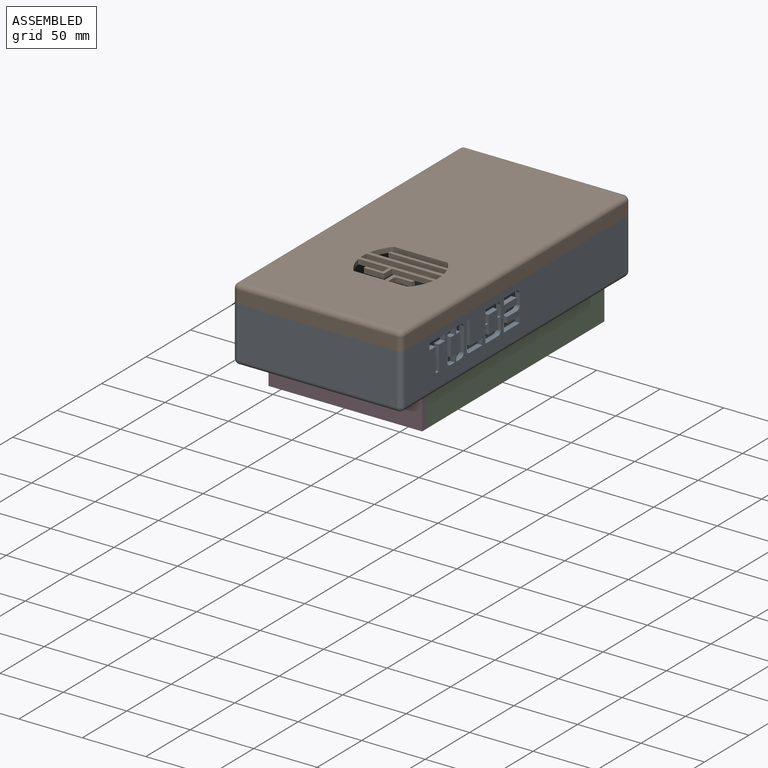
[diagram: assembled view]
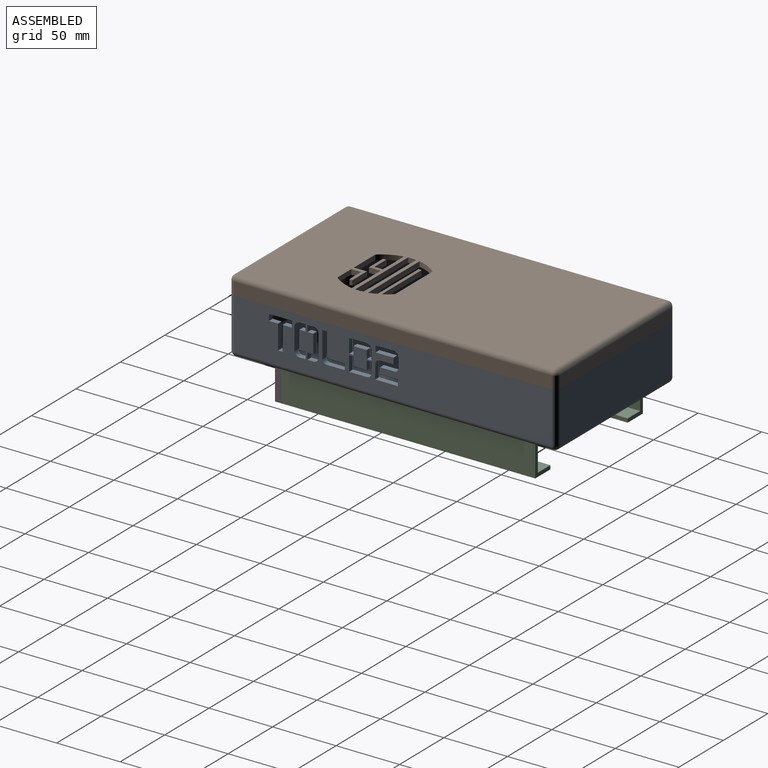
[diagram: assembled view, second angle]
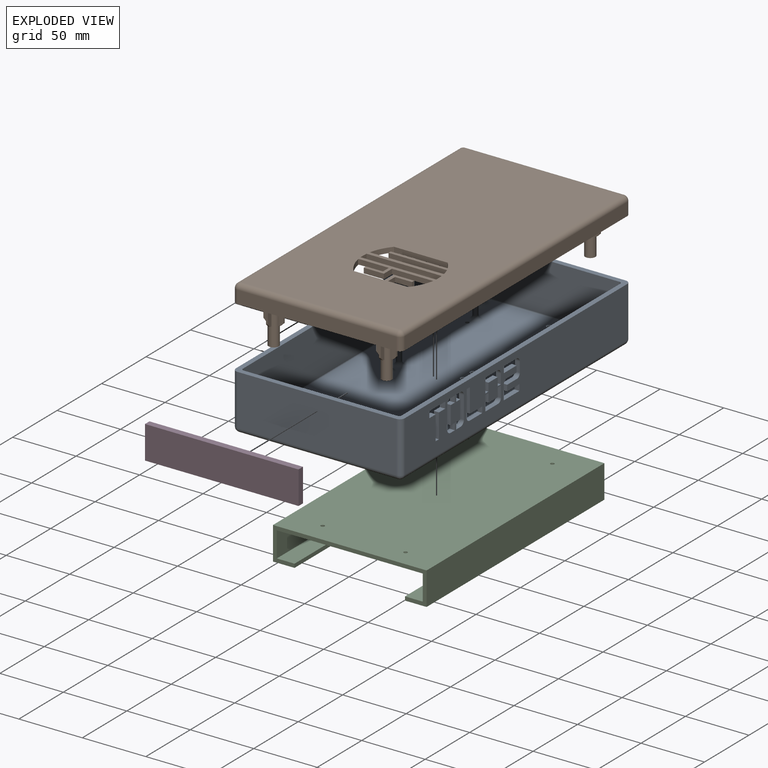
[diagram: exploded view]
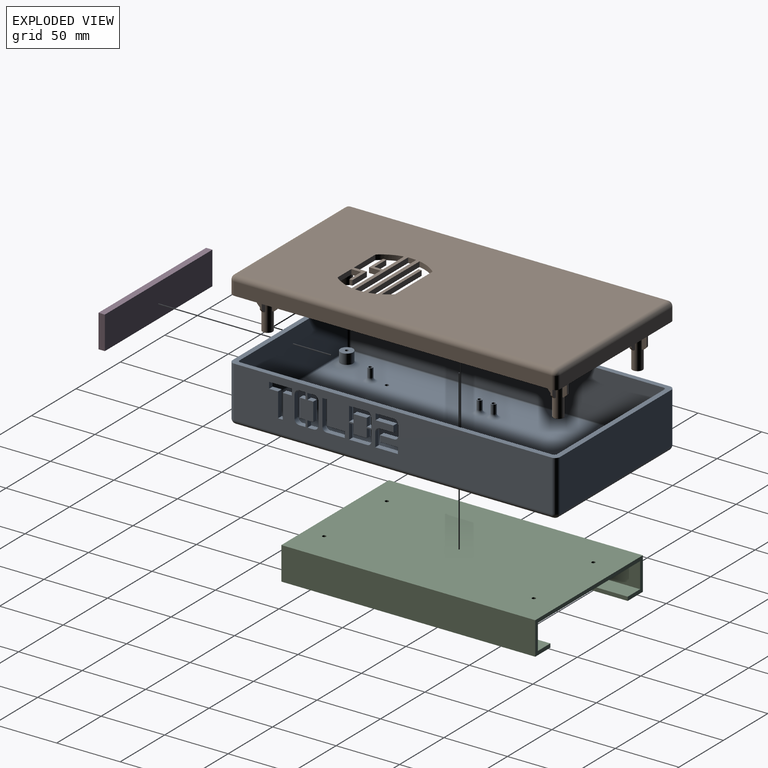
[diagram: exploded view, second angle]
FCSTD DOCUMENT  (FreeCAD 0.20R)
Label: FINALES
License: All rights reserved
objects: Sketcher::SketchObject×13, PartDesign::Pad×10, Part::Feature×10, PartDesign::Pocket×7, PartDesign::Fillet×6, PartDesign::Body×4, App::Part×4, App::Link×3, PartDesign::SubShapeBinder×3, PartDesign::Thickness×2, PartDesign::Hole×2, PartDesign::Chamfer×1, Part::Compound×1, Part::MultiFuse×1
note: 88 computed .brp shape members not serialized (recipe doc carries the construction recipe); baked Part::Feature solids carry a one-line shape summary decoded from their .brp
EXTERNAL_REF file=SOPORTE SOPORTE SOPORTE QUE ME ENREDO.FCStd obj=_75_13541_BATUU_DEV_KIT_TOP_ASS_ASM
EXTERNAL_REF file=SOPORTE SOPORTE SOPORTE QUE ME ENREDO.FCStd obj=Compound
EXTERNAL_REF file=SOPORTE SOPORTE SOPORTE QUE ME ENREDO.FCStd obj=Part__Feature600

FEATURE [Sketcher::SketchObject] Sketch
  FullyConstrained = true
  MapMode = 5
  Support = -> [XY_Plane]
  sketch-geometry (4):
    g0: LineSegment StartX=0 StartY=0 StartZ=0 EndX=125 EndY=0 EndZ=0
    g1: LineSegment StartX=125 StartY=0 StartZ=0 EndX=125 EndY=-250 EndZ=0
    g2: LineSegment StartX=125 StartY=-250 StartZ=0 EndX=0 EndY=-250 EndZ=0
    g3: LineSegment StartX=0 StartY=-250 StartZ=0 EndX=0 EndY=0 EndZ=0
  constraints (11):
    c: Coincident(g0,g1)
    c: Coincident(g1,g2)
    c: Coincident(g2,g3)
    c: Coincident(g3,g0)
    c: Horizontal(g0)
    c: Horizontal(g2)
    c: Vertical(g1)
    c: Vertical(g3)
    c: Coincident(g0,g-1)
    c: DistanceY(g1,g1) = 250
    c: DistanceX(g2,g2) = 125
FEATURE [PartDesign::Pad] Pad
  AlongSketchNormal = false
  Direction = (0,0,1)
  Length = 40
  Length2 = 100
  Profile = -> Sketch
  Type = 0
FEATURE [PartDesign::Thickness] Thickness
  Base = -> Pad [Face6]
  BaseFeature = -> Pad
  Intersection = false
  Join = 0
  Mode = 0
  SupportTransform = false
  Value = 4
FEATURE [PartDesign::Fillet] Fillet
  Base = -> Thickness [Edge1,Edge2,Edge8,Edge5]
  BaseFeature = -> Thickness
  Radius = 2
  SupportTransform = false
  UseAllEdges = false
FEATURE [App::Link] Link002  label="675_13541_BATUU_DEV_KIT_TOP_ASS_ASM"
  LinkPlacement = pos=(30,-126,8.99999) rot=(0,0,-1;1.5708rad)
  LinkedObject = -> <external SOPORTE SOPORTE SOPORTE QUE ME ENREDO.FCStd>#_75_13541_BATUU_DEV_KIT_TOP_ASS_ASM
  Placement = pos=(30,-126,8.99999) rot=(0,0,-1;1.5708rad)
FEATURE [App::Link] Link003  label="Compound001"
  LinkPlacement = pos=(67,-128,23) rot=(0,0,-1;1.5708rad)
  LinkedObject = -> <external SOPORTE SOPORTE SOPORTE QUE ME ENREDO.FCStd>#Compound
  Placement = pos=(67,-128,23) rot=(0,0,-1;1.5708rad)
FEATURE [Sketcher::SketchObject] Sketch001
  ExternalGeometry = -> [Fillet]
  FullyConstrained = false
  MapMode = 5
  Support = -> [Fillet]
  sketch-geometry (16):
    g0: Circle CenterX=29.8532 CenterY=-29.0023 CenterZ=0 NormalX=0 NormalY=0 NormalZ=1 AngleXU=0 Radius=1.45
    g1: Circle CenterX=87.866 CenterY=-29.0145 CenterZ=0 NormalX=0 NormalY=0 NormalZ=1 AngleXU=0 Radius=1.45
    g2: Circle CenterX=29.8312 CenterY=-115.003 CenterZ=0 NormalX=0 NormalY=0 NormalZ=1 AngleXU=0 Radius=1.45
    g3: Circle CenterX=87.865 CenterY=-115.008 CenterZ=0 NormalX=0 NormalY=0 NormalZ=1 AngleXU=0 Radius=1.45
    g4: Circle CenterX=29.9971 CenterY=-126.001 CenterZ=0 NormalX=0 NormalY=0 NormalZ=1 AngleXU=0 Radius=1.4
    g5: Circle CenterX=88.0054 CenterY=-126.011 CenterZ=0 NormalX=0 NormalY=0 NormalZ=1 AngleXU=0 Radius=1.4
    g6: Circle CenterX=87.9933 CenterY=-211.995 CenterZ=0 NormalX=0 NormalY=0 NormalZ=1 AngleXU=0 Radius=1.4
    g7: Circle CenterX=30.0082 CenterY=-211.995 CenterZ=0 NormalX=0 NormalY=0 NormalZ=1 AngleXU=0 Radius=1.4
    g8: Circle CenterX=29.8532 CenterY=-29.0023 CenterZ=0 NormalX=0 NormalY=0 NormalZ=1 AngleXU=0 Radius=2
    g9: Circle CenterX=87.866 CenterY=-29.0145 CenterZ=0 NormalX=0 NormalY=0 NormalZ=1 AngleXU=0 Radius=2
    g10: Circle CenterX=29.8312 CenterY=-115.003 CenterZ=0 NormalX=0 NormalY=0 NormalZ=1 AngleXU=0 Radius=2
    g11: Circle CenterX=87.865 CenterY=-115.008 CenterZ=0 NormalX=0 NormalY=0 NormalZ=1 AngleXU=0 Radius=2
    g12: Circle CenterX=88.0054 CenterY=-126.011 CenterZ=0 NormalX=0 NormalY=0 NormalZ=1 AngleXU=0 Radius=2
    g13: Circle CenterX=29.9971 CenterY=-126.001 CenterZ=0 NormalX=0 NormalY=0 NormalZ=1 AngleXU=0 Radius=2
    g14: Circle CenterX=87.9933 CenterY=-211.995 CenterZ=0 NormalX=0 NormalY=0 NormalZ=1 AngleXU=0 Radius=2
    g15: Circle CenterX=30.0082 CenterY=-211.995 CenterZ=0 NormalX=0 NormalY=0 NormalZ=1 AngleXU=0 Radius=2
  constraints (24):
    c: Radius(g0) = 1.45
    c: Radius(g1) = 1.45
    c: Radius(g2) = 1.45
    c: Radius(g3) = 1.45
    c: Radius(g4) = 1.4
    c: Radius(g5) = 1.4
    c: Radius(g6) = 1.4
    c: Radius(g7) = 1.4
    c: Coincident(g8,g0)
    c: Radius(g8) = 2
    c: Coincident(g9,g1)
    c: Radius(g9) = 2
    c: Coincident(g10,g2)
    c: Radius(g10) = 2
    c: Coincident(g11,g3)
    c: Radius(g11) = 2
    c: Coincident(g12,g5)
    c: Radius(g12) = 2
    c: Coincident(g13,g4)
    c: Radius(g13) = 2
    c: Coincident(g14,g6)
    c: Radius(g14) = 2
    c: Coincident(g15,g7)
    c: Radius(g15) = 2
FEATURE [PartDesign::Pad] Pad001
  AlongSketchNormal = false
  BaseFeature = -> Fillet
  Direction = (0,0,1)
  Length = 10
  Length2 = 100
  Profile = -> Sketch001
  Type = 0
FEATURE [PartDesign::Fillet] Fillet001
  Base = -> Pad001 [Edge1,Edge8,Edge6,Edge5,Edge7,Edge9,Edge11,Edge10]
  BaseFeature = -> Pad001
  Radius = 1
  SupportTransform = false
  UseAllEdges = false
FEATURE [PartDesign::Fillet] Fillet002
  Base = -> Fillet001 [Edge39,Edge40,Edge43,Edge44,Edge37,Edge38,Edge41,Edge42]
  BaseFeature = -> Fillet001
  Radius = 3
  SupportTransform = false
  UseAllEdges = false
FEATURE [Sketcher::SketchObject] Sketch002
  ExternalGeometry = -> [Fillet002]
  FullyConstrained = false
  MapMode = 5
  Support = -> [Fillet002]
  sketch-geometry (12):
    g0: Circle CenterX=18 CenterY=-239 CenterZ=0 NormalX=0 NormalY=0 NormalZ=1 AngleXU=0 Radius=4
    g1: LineSegment StartX=18 StartY=-239 StartZ=0 EndX=1 EndY=-239 EndZ=0
    g2: LineSegment StartX=18 StartY=-239 StartZ=0 EndX=18 EndY=-249 EndZ=0
    g3: Circle CenterX=107 CenterY=-239 CenterZ=0 NormalX=0 NormalY=0 NormalZ=1 AngleXU=0 Radius=4
    g4: LineSegment StartX=107 StartY=-239 StartZ=0 EndX=124 EndY=-239 EndZ=0
    g5: LineSegment StartX=107 StartY=-239 StartZ=0 EndX=107 EndY=-249 EndZ=0
    g6: Circle CenterX=18 CenterY=-10 CenterZ=0 NormalX=0 NormalY=0 NormalZ=1 AngleXU=0 Radius=4
    g7: LineSegment StartX=18 StartY=-10 StartZ=0 EndX=1 EndY=-10 EndZ=0
    g8: LineSegment StartX=18 StartY=-10 StartZ=0 EndX=18 EndY=-1 EndZ=0
    g9: Circle CenterX=107 CenterY=-10 CenterZ=0 NormalX=0 NormalY=0 NormalZ=1 AngleXU=0 Radius=4
    g10: LineSegment StartX=107 StartY=-10 StartZ=0 EndX=124 EndY=-10 EndZ=0
    g11: LineSegment StartX=107 StartY=-10 StartZ=0 EndX=101.713 EndY=-1 EndZ=0
  constraints (35):
    c: Radius(g0) = 4
    c: Coincident(g1,g0)
    c: PointOnObject(g1,g-3)
    c: Horizontal(g1)
    c: Coincident(g2,g0)
    c: PointOnObject(g2,g-6)
    c: Vertical(g2)
    c: DistanceX(g1,g1) = 17
    c: DistanceY(g2,g2) = 10
    c: Radius(g3) = 4
    c: Coincident(g4,g3)
    c: PointOnObject(g4,g-5)
    c: Horizontal(g4)
    c: Coincident(g5,g3)
    c: PointOnObject(g5,g-6)
    c: Vertical(g5)
    c: DistanceX(g4,g4) = 17
    c: DistanceY(g5,g5) = 10
    c: Radius(g6) = 4
    c: Coincident(g7,g6)
    c: PointOnObject(g7,g-3)
    c: Horizontal(g7)
    c: DistanceX(g7,g7) = 17
    c: Coincident(g8,g6)
    c: PointOnObject(g8,g-4)
    c: Vertical(g8)
    c: DistanceY(g8,g8) = 9
    c: Radius(g9) = 4
    c: Coincident(g10,g9)
    c: PointOnObject(g10,g-5)
    c: Horizontal(g10)
    c: DistanceX(g10,g10) = 17
    c: Coincident(g11,g9)
    c: PointOnObject(g11,g-4)
    c: DistanceY(g11,g11) = 9
FEATURE [PartDesign::Pad] Pad002
  AlongSketchNormal = false
  BaseFeature = -> Fillet002
  Direction = (0,0,1)
  Length = 10
  Length2 = 100
  Profile = -> Sketch002
  Type = 0
FEATURE [PartDesign::Fillet] Fillet003
  Base = -> Pad002 [Edge9,Edge12,Edge20,Edge16]
  BaseFeature = -> Pad002
  Radius = 5
  SupportTransform = false
  UseAllEdges = false
FEATURE [App::Link] Link  label="40mmFan v3"
  LinkPlacement = pos=(71,-170,37) rot=(0,0,1;0rad)
  LinkedObject = -> <external SOPORTE SOPORTE SOPORTE QUE ME ENREDO.FCStd>#Part__Feature600
  Placement = pos=(71,-170,37) rot=(0,0,1;0rad)
FEATURE [PartDesign::Pad] Pad003
  AlongSketchNormal = false
  BaseFeature = -> Fillet003
  Direction = (0,0,1)
  Length = 10
  Length2 = 100
  Profile = -> Fillet003 [Face52,Face42,Face53,Face54]
  Reversed = true
  Type = 3
  UpToFace = -> Fillet003 [Face87]
FEATURE [Sketcher::SketchObject] Sketch003
  ExternalGeometry = -> [Pad003]
  FullyConstrained = true
  MapMode = 5
  Support = -> [Pad003]
  sketch-geometry (4):
    g0: Circle CenterX=18 CenterY=-10 CenterZ=0 NormalX=0 NormalY=0 NormalZ=1 AngleXU=0 Radius=1.26
    g1: Circle CenterX=107 CenterY=-10 CenterZ=0 NormalX=0 NormalY=0 NormalZ=1 AngleXU=0 Radius=1.26
    g2: Circle CenterX=107 CenterY=-239 CenterZ=0 NormalX=0 NormalY=0 NormalZ=1 AngleXU=0 Radius=1.26
    g3: Circle CenterX=18 CenterY=-239 CenterZ=0 NormalX=0 NormalY=0 NormalZ=1 AngleXU=0 Radius=1.26
  constraints (8):
    c: Coincident(g0,g-6)
    c: Coincident(g1,g-5)
    c: Coincident(g2,g-4)
    c: Coincident(g3,g-3)
    c: Equal(g3,g2)
    c: Equal(g2,g1)
    c: Equal(g1,g0)
    c: Radius(g0) = 1.26
FEATURE [PartDesign::Pocket] Pocket
  BaseFeature = -> Pad003
  Direction = (1,1,1)
  Length = 5
  Length2 = 100
  Midplane = true
  Profile = -> Sketch003
  Type = 1
FEATURE [PartDesign::Pocket] Pocket001
  BaseFeature = -> Pocket
  Direction = (1,1,1)
  Length = 12
  Length2 = 100
  Profile = -> Pocket [Edge162,Edge176,Edge180,Edge178]
  Reversed = true
  Type = 0
FEATURE [Sketcher::SketchObject] Sketch004
  FullyConstrained = true
  MapMode = 5
  Support = -> [XY_Plane001]
  sketch-geometry (4):
    g0: LineSegment StartX=0 StartY=0 StartZ=0 EndX=125 EndY=0 EndZ=0
    g1: LineSegment StartX=125 StartY=0 StartZ=0 EndX=125 EndY=-250 EndZ=0
    g2: LineSegment StartX=125 StartY=-250 StartZ=0 EndX=0 EndY=-250 EndZ=0
    g3: LineSegment StartX=0 StartY=-250 StartZ=0 EndX=0 EndY=0 EndZ=0
  constraints (11):
    c: Coincident(g0,g1)
    c: Coincident(g1,g2)
    c: Coincident(g2,g3)
    c: Coincident(g3,g0)
    c: Horizontal(g0)
    c: Horizontal(g2)
    c: Vertical(g1)
    c: Vertical(g3)
    c: Coincident(g0,g-1)
    c: DistanceY(g1,g1) = 250
    c: DistanceX(g2,g2) = 125
FEATURE [PartDesign::Pad] Pad004
  AlongSketchNormal = false
  Direction = (0,0,1)
  Length = 10
  Length2 = 100
  Profile = -> Sketch004
  Type = 0
FEATURE [PartDesign::Thickness] Thickness001
  Base = -> Pad004 [Face5]
  BaseFeature = -> Pad004
  Intersection = false
  Join = 0
  Mode = 0
  SupportTransform = false
  Value = 4
FEATURE [PartDesign::Fillet] Fillet004
  Base = -> Thickness001 [Edge1,Edge4,Edge12,Edge8,Edge10,Edge5,Edge7,Edge2]
  BaseFeature = -> Thickness001
  Radius = 2
  SupportTransform = false
  UseAllEdges = false
FEATURE [Sketcher::SketchObject] Sketch005
  ExternalGeometry = -> [Fillet004]
  FullyConstrained = true
  MapMode = 5
  Placement = pos=(0,0,10) rot=(1,0,0;3.14159rad)
  Support = -> [Fillet004]
  sketch-geometry (12):
    g0: Circle CenterX=18 CenterY=239 CenterZ=0 NormalX=0 NormalY=0 NormalZ=1 AngleXU=0 Radius=4
    g1: LineSegment StartX=18 StartY=239 StartZ=0 EndX=18 EndY=248 EndZ=0
    g2: LineSegment StartX=18 StartY=239 StartZ=0 EndX=2 EndY=239 EndZ=0
    g3: Circle CenterX=107 CenterY=239 CenterZ=0 NormalX=0 NormalY=0 NormalZ=1 AngleXU=0 Radius=4
    g4: LineSegment StartX=107 StartY=239 StartZ=0 EndX=123 EndY=239 EndZ=0
    g5: LineSegment StartX=107 StartY=239 StartZ=0 EndX=107 EndY=248 EndZ=0
    g6: Circle CenterX=18 CenterY=10 CenterZ=0 NormalX=0 NormalY=0 NormalZ=1 AngleXU=0 Radius=4
    g7: LineSegment StartX=18 StartY=10 StartZ=0 EndX=18 EndY=0 EndZ=0
    g8: LineSegment StartX=18 StartY=10 StartZ=0 EndX=2 EndY=10 EndZ=0
    g9: Circle CenterX=107 CenterY=10 CenterZ=0 NormalX=0 NormalY=0 NormalZ=1 AngleXU=0 Radius=4
    g10: LineSegment StartX=107 StartY=10 StartZ=0 EndX=123 EndY=10 EndZ=0
    g11: LineSegment StartX=107 StartY=10 StartZ=0 EndX=107 EndY=0 EndZ=0
  constraints (36):
    c: Coincident(g1,g0)
    c: PointOnObject(g1,g-3)
    c: Vertical(g1)
    c: Coincident(g2,g0)
    c: PointOnObject(g2,g-4)
    c: Horizontal(g2)
    c: DistanceY(g1,g1) = 9
    c: DistanceX(g2,g2) = 16
    c: Radius(g0) = 4
    c: Coincident(g4,g3)
    c: PointOnObject(g4,g-5)
    c: Horizontal(g4)
    c: Coincident(g5,g3)
    c: PointOnObject(g5,g-3)
    c: Vertical(g5)
    c: Radius(g3) = 4
    c: DistanceX(g4,g4) = 16
    c: DistanceY(g5,g5) = 9
    c: Radius(g6) = 4
    c: Coincident(g7,g6)
    c: PointOnObject(g7,g-1)
    c: Vertical(g7)
    c: DistanceY(g7,g7) = 10
    c: Coincident(g8,g6)
    c: PointOnObject(g8,g-4)
    c: Horizontal(g8)
    c: DistanceX(g8,g8) = 16
    c: Coincident(g10,g9)
    c: PointOnObject(g10,g-5)
    c: Horizontal(g10)
    c: DistanceX(g10,g10) = 16
    c: Coincident(g11,g9)
    c: PointOnObject(g11,g-1)
    c: Vertical(g11)
    c: DistanceY(g11,g11) = 10
    c: Radius(g9) = 4
FEATURE [PartDesign::Pad] Pad005
  AlongSketchNormal = false
  BaseFeature = -> Fillet004
  Direction = (0,0,-1)
  Length = 40
  Length2 = 100
  Profile = -> Sketch005
  Type = 0
FEATURE [PartDesign::Pad] Pad006
  AlongSketchNormal = false
  BaseFeature = -> Pad005
  Direction = (0,0,-1)
  Length = 10
  Length2 = 100
  Profile = -> Pad005 [Face42,Face43,Face40,Face41]
  Reversed = true
  Type = 3
  UpToFace = -> Pad005 [Face39]
FEATURE [Sketcher::SketchObject] Sketch006
  ExternalGeometry = -> [Pad006]
  FullyConstrained = true
  MapMode = 5
  Placement = pos=(0,0,10) rot=(1,0,0;3.14159rad)
  Support = -> [Pad006]
  sketch-geometry (4):
    g0: Circle CenterX=107 CenterY=10 CenterZ=0 NormalX=0 NormalY=0 NormalZ=1 AngleXU=0 Radius=1.26
    g1: Circle CenterX=18 CenterY=10 CenterZ=0 NormalX=0 NormalY=0 NormalZ=1 AngleXU=0 Radius=1.26
    g2: Circle CenterX=18 CenterY=239 CenterZ=0 NormalX=0 NormalY=0 NormalZ=1 AngleXU=0 Radius=1.26
    g3: Circle CenterX=107 CenterY=239 CenterZ=0 NormalX=0 NormalY=0 NormalZ=1 AngleXU=0 Radius=1.26
  constraints (8):
    c: Coincident(g0,g-6)
    c: Coincident(g1,g-5)
    c: Coincident(g2,g-4)
    c: Coincident(g3,g-3)
    c: Equal(g3,g2)
    c: Equal(g2,g1)
    c: Equal(g1,g0)
    c: Radius(g1) = 1.26
FEATURE [Part::Feature] path871
  Placement = pos=(138,-107,54) rot=(0,0,-1;1.5708rad)
  shape: bbox 59.65 x 6.668 x 2e-07 mm, 0 faces, 0 solids (baked)
FEATURE [Part::Feature] path873
  Placement = pos=(138,-107,54) rot=(0,0,-1;1.5708rad)
  shape: bbox 58.95 x 16.93 x 2e-07 mm, 0 faces, 0 solids (baked)
FEATURE [Part::Feature] path875
  Placement = pos=(138,-107,54) rot=(0,0,-1;1.5708rad)
  shape: bbox 58.21 x 16.02 x 2e-07 mm, 0 faces, 0 solids (baked)
FEATURE [PartDesign::Pocket] Pocket002
  BaseFeature = -> Pad006
  Direction = (1,1,1)
  Length = 5
  Length2 = 100
  Profile = -> Sketch006
  Reversed = true
  Type = 1
FEATURE [PartDesign::SubShapeBinder] Import  label="Import(path873)"
  BindCopyOnChange = 0
  BindMode = 0
  ClaimChildren = false
  Context = -> Part001 [Body001.Import.]
  Fuse = false
  MakeFace = false
  OffsetFill = false
  OffsetIntersection = false
  OffsetJoinType = 0
  OffsetOpenResult = false
  PartialLoad = false
  Relative = true
  Support = -> [path873]
  _Version = 8
FEATURE [PartDesign::Pocket] Pocket003
  BaseFeature = -> Pocket002
  Direction = (1,1,1)
  Length = 5
  Length2 = 100
  Profile = -> Import
  Type = 0
FEATURE [PartDesign::SubShapeBinder] Import001  label="Import001(path875)"
  BindCopyOnChange = 0
  BindMode = 0
  ClaimChildren = false
  Context = -> Part001 [Body001.Import001.]
  Fuse = false
  MakeFace = false
  OffsetFill = false
  OffsetIntersection = false
  OffsetJoinType = 0
  OffsetOpenResult = false
  PartialLoad = false
  Relative = true
  Support = -> [path875]
  _Version = 8
FEATURE [PartDesign::Pocket] Pocket004
  BaseFeature = -> Pocket003
  Direction = (1,1,1)
  Length = 5
  Length2 = 100
  Profile = -> Import001
  Type = 0
FEATURE [PartDesign::SubShapeBinder] Import002  label="Import002(path871)"
  BindCopyOnChange = 0
  BindMode = 0
  ClaimChildren = false
  Context = -> Part001 [Body001.Import002.]
  Fuse = false
  MakeFace = false
  OffsetFill = false
  OffsetIntersection = false
  OffsetJoinType = 0
  OffsetOpenResult = false
  PartialLoad = false
  Relative = true
  Support = -> [path871]
  _Version = 8
FEATURE [PartDesign::Pocket] Pocket005
  BaseFeature = -> Pocket004
  Direction = (0,0,-1)
  Length = 5
  Length2 = 100
  Profile = -> Import002
  Type = 0
FEATURE [Sketcher::SketchObject] Sketch007
  FullyConstrained = false
  MapMode = 5
  Placement = pos=(0,0,10) rot=(1,0,0;3.14159rad)
  Support = -> [Pocket005]
  sketch-geometry (68):
    g0: LineSegment StartX=17.395 StartY=242.881 StartZ=0 EndX=18.895 EndY=242.881 EndZ=0
    g1: LineSegment StartX=18.895 StartY=242.881 StartZ=0 EndX=18.895 EndY=246.881 EndZ=0
    g2: LineSegment StartX=18.895 StartY=246.881 StartZ=0 EndX=17.395 EndY=246.881 EndZ=0
    g3: LineSegment StartX=17.395 StartY=246.881 StartZ=0 EndX=17.395 EndY=242.881 EndZ=0
    g4: LineSegment StartX=17.2583 StartY=235.041 StartZ=0 EndX=18.7583 EndY=235.041 EndZ=0
    g5: LineSegment StartX=18.7583 StartY=235.041 StartZ=0 EndX=18.7583 EndY=232.041 EndZ=0
    g6: LineSegment StartX=18.7583 StartY=232.041 StartZ=0 EndX=17.2583 EndY=232.041 EndZ=0
    g7: LineSegment StartX=17.2583 StartY=232.041 StartZ=0 EndX=17.2583 EndY=235.041 EndZ=0
    g8: LineSegment StartX=21.9214 StartY=239.356 StartZ=0 EndX=25.9214 EndY=239.356 EndZ=0
    g9: LineSegment StartX=25.9214 StartY=239.356 StartZ=0 EndX=25.9214 EndY=237.856 EndZ=0
    g10: LineSegment StartX=25.9214 StartY=237.856 StartZ=0 EndX=21.9214 EndY=237.856 EndZ=0
    g11: LineSegment StartX=21.9214 StartY=237.856 StartZ=0 EndX=21.9214 EndY=239.356 EndZ=0
    g12: LineSegment StartX=14.1091 StartY=239.356 StartZ=0 EndX=10.1091 EndY=239.356 EndZ=0
    g13: LineSegment StartX=10.1091 StartY=239.356 StartZ=0 EndX=10.1091 EndY=237.856 EndZ=0
    g14: LineSegment StartX=10.1091 StartY=237.856 StartZ=0 EndX=14.1091 EndY=237.856 EndZ=0
    g15: LineSegment StartX=14.1091 StartY=237.856 StartZ=0 EndX=14.1091 EndY=239.356 EndZ=0
    g16: LineSegment StartX=21.9214 StartY=239.356 StartZ=0 EndX=14.1091 EndY=239.356 EndZ=0
    g17: LineSegment StartX=106.3 StartY=242.893 StartZ=0 EndX=107.8 EndY=242.893 EndZ=0
    g18: LineSegment StartX=107.8 StartY=242.893 StartZ=0 EndX=107.8 EndY=246.893 EndZ=0
    g19: LineSegment StartX=107.8 StartY=246.893 StartZ=0 EndX=106.3 EndY=246.893 EndZ=0
    g20: LineSegment StartX=106.3 StartY=246.893 StartZ=0 EndX=106.3 EndY=242.893 EndZ=0
    g21: LineSegment StartX=106.24 StartY=235.097 StartZ=0 EndX=107.74 EndY=235.097 EndZ=0
    g22: LineSegment StartX=107.74 StartY=235.097 StartZ=0 EndX=107.74 EndY=231.097 EndZ=0
    g23: LineSegment StartX=107.74 StartY=231.097 StartZ=0 EndX=106.24 EndY=231.097 EndZ=0
    g24: LineSegment StartX=106.24 StartY=231.097 StartZ=0 EndX=106.24 EndY=235.097 EndZ=0
    g25: LineSegment StartX=110.88 StartY=239.6 StartZ=0 EndX=114.88 EndY=239.6 EndZ=0
    g26: LineSegment StartX=114.88 StartY=239.6 StartZ=0 EndX=114.88 EndY=238.1 EndZ=0
    g27: LineSegment StartX=114.88 StartY=238.1 StartZ=0 EndX=110.88 EndY=238.1 EndZ=0
    g28: LineSegment StartX=110.88 StartY=238.1 StartZ=0 EndX=110.88 EndY=239.6 EndZ=0
    g29: LineSegment StartX=103.116 StartY=239.665 StartZ=0 EndX=99.1165 EndY=239.665 EndZ=0
    g30: LineSegment StartX=99.1165 StartY=239.665 StartZ=0 EndX=99.1165 EndY=238.165 EndZ=0
    g31: LineSegment StartX=99.1165 StartY=238.165 StartZ=0 EndX=103.116 EndY=238.165 EndZ=0
    g32: LineSegment StartX=103.116 StartY=238.165 StartZ=0 EndX=103.116 EndY=239.665 EndZ=0
    g33: LineSegment StartX=107.899 StartY=6.13942 StartZ=0 EndX=106.399 EndY=6.13942 EndZ=0
    g34: LineSegment StartX=106.399 StartY=6.13942 StartZ=0 EndX=106.399 EndY=2.63942 EndZ=0
    g35: LineSegment StartX=106.399 StartY=2.63942 StartZ=0 EndX=107.899 EndY=2.63942 EndZ=0
    g36: LineSegment StartX=107.899 StartY=2.63942 StartZ=0 EndX=107.899 EndY=6.13942 EndZ=0
    g37: LineSegment StartX=103.112 StartY=9.19621 StartZ=0 EndX=99.1124 EndY=9.19621 EndZ=0
    g38: LineSegment StartX=99.1124 StartY=9.19621 StartZ=0 EndX=99.1124 EndY=10.6962 EndZ=0
    g39: LineSegment StartX=99.1124 StartY=10.6962 StartZ=0 EndX=103.112 EndY=10.6962 EndZ=0
    g40: LineSegment StartX=103.112 StartY=10.6962 StartZ=0 EndX=103.112 EndY=9.19621 EndZ=0
    g41: LineSegment StartX=107.749 StartY=13.8535 StartZ=0 EndX=106.249 EndY=13.8535 EndZ=0
    g42: LineSegment StartX=106.249 StartY=13.8535 StartZ=0 EndX=106.249 EndY=17.8535 EndZ=0
    g43: LineSegment StartX=106.249 StartY=17.8535 StartZ=0 EndX=107.749 EndY=17.8535 EndZ=0
    g44: LineSegment StartX=107.749 StartY=17.8535 StartZ=0 EndX=107.749 EndY=13.8535 EndZ=0
    g45: LineSegment StartX=110.854 StartY=9.19621 StartZ=0 EndX=114.854 EndY=9.19621 EndZ=0
    g46: LineSegment StartX=114.854 StartY=9.19621 StartZ=0 EndX=114.854 EndY=10.6962 EndZ=0
    g47: LineSegment StartX=114.854 StartY=10.6962 StartZ=0 EndX=110.854 EndY=10.6962 EndZ=0
    g48: LineSegment StartX=110.854 StartY=10.6962 StartZ=0 EndX=110.854 EndY=9.19621 EndZ=0
    g49: LineSegment StartX=103.112 StartY=10.6962 StartZ=0 EndX=110.854 EndY=10.6962 EndZ=0
    g50: LineSegment StartX=21.9263 StartY=10.7245 StartZ=0 EndX=25.9263 EndY=10.7245 EndZ=0
    g51: LineSegment StartX=25.9263 StartY=10.7245 StartZ=0 EndX=25.9263 EndY=9.22454 EndZ=0
    g52: LineSegment StartX=25.9263 StartY=9.22454 StartZ=0 EndX=21.9263 EndY=9.22454 EndZ=0
    g53: LineSegment StartX=21.9263 StartY=9.22454 StartZ=0 EndX=21.9263 EndY=10.7245 EndZ=0
    g54: LineSegment StartX=17.2823 StartY=6.25988 StartZ=0 EndX=18.7823 EndY=6.25988 EndZ=0
    g55: LineSegment StartX=18.7823 StartY=6.25988 StartZ=0 EndX=18.7823 EndY=2.25988 EndZ=0
    g56: LineSegment StartX=18.7823 StartY=2.25988 StartZ=0 EndX=17.2823 EndY=2.25988 EndZ=0
    g57: LineSegment StartX=17.2823 StartY=2.25988 StartZ=0 EndX=17.2823 EndY=6.25988 EndZ=0
    g58: LineSegment StartX=14.1682 StartY=10.7245 StartZ=0 EndX=10.1682 EndY=10.7245 EndZ=0
    g59: LineSegment StartX=10.1682 StartY=10.7245 StartZ=0 EndX=10.1682 EndY=9.22454 EndZ=0
    g60: LineSegment StartX=10.1682 StartY=9.22454 StartZ=0 EndX=14.1682 EndY=9.22454 EndZ=0
    g61: LineSegment StartX=14.1682 StartY=9.22454 StartZ=0 EndX=14.1682 EndY=10.7245 EndZ=0
    g62: LineSegment StartX=17.2823 StartY=13.9013 StartZ=0 EndX=18.7823 EndY=13.9013 EndZ=0
    g63: LineSegment StartX=18.7823 StartY=13.9013 StartZ=0 EndX=18.7823 EndY=17.9013 EndZ=0
    g64: LineSegment StartX=18.7823 StartY=17.9013 StartZ=0 EndX=17.2823 EndY=17.9013 EndZ=0
    g65: LineSegment StartX=17.2823 StartY=17.9013 StartZ=0 EndX=17.2823 EndY=13.9013 EndZ=0
    g66: LineSegment StartX=21.9263 StartY=10.7245 StartZ=0 EndX=14.1682 EndY=10.7245 EndZ=0
    g67: LineSegment StartX=17.2823 StartY=13.9013 StartZ=0 EndX=17.2823 EndY=6.25988 EndZ=0
  constraints (172):
    c: Coincident(g0,g1)
    c: Coincident(g1,g2)
    c: Coincident(g2,g3)
    c: Coincident(g3,g0)
    c: Horizontal(g0)
    c: Horizontal(g2)
    c: Vertical(g1)
    c: Vertical(g3)
    c: DistanceY(g1,g1) = 4
    c: DistanceX(g2,g2) = 1.5
    c: Coincident(g4,g5)
    c: Coincident(g5,g6)
    c: Coincident(g6,g7)
    c: Coincident(g7,g4)
    c: Horizontal(g4)
    c: Horizontal(g6)
    c: Vertical(g5)
    c: Vertical(g7)
    c: DistanceY(g5,g5) = 3
    c: DistanceX(g6,g6) = 1.5
    c: Coincident(g8,g9)
    c: Coincident(g9,g10)
    c: Coincident(g10,g11)
    c: Coincident(g11,g8)
    c: Horizontal(g8)
    c: Horizontal(g10)
    c: Vertical(g9)
    c: Vertical(g11)
    c: DistanceY(g9,g9) = 1.5
    c: DistanceX(g8,g8) = 4
    c: Coincident(g12,g13)
    c: Coincident(g13,g14)
    c: Coincident(g14,g15)
    c: Coincident(g15,g12)
    c: Horizontal(g12)
    c: Horizontal(g14)
    c: Vertical(g13)
    c: Vertical(g15)
    c: Coincident(g16,g8)
    c: Coincident(g16,g12)
    c: Horizontal(g16)
    c: DistanceX(g12,g12) = 4
    c: DistanceY(g13,g13) = 1.5
    c: Coincident(g17,g18)
    c: Coincident(g18,g19)
    c: Coincident(g19,g20)
    c: Coincident(g20,g17)
    c: Horizontal(g17)
    c: Horizontal(g19)
    c: Vertical(g18)
    c: Vertical(g20)
    c: Coincident(g21,g22)
    c: Coincident(g22,g23)
    c: Coincident(g23,g24)
    c: Coincident(g24,g21)
    c: Horizontal(g21)
    c: Horizontal(g23)
    c: Vertical(g22)
    c: Vertical(g24)
    c: Coincident(g25,g26)
    c: Coincident(g26,g27)
    c: Coincident(g27,g28)
    c: Coincident(g28,g25)
    c: Horizontal(g25)
    c: Horizontal(g27)
    c: Vertical(g26)
    c: Vertical(g28)
    c: DistanceX(g17,g17) = 1.5
    c: DistanceY(g18,g18) = 4
    c: DistanceY(g28,g28) = 1.5
    c: DistanceX(g25,g25) = 4
    c: DistanceX(g21,g21) = 1.5
    c: DistanceY(g22,g22) = 4
    c: Coincident(g29,g30)
    c: Coincident(g30,g31)
    c: Coincident(g31,g32)
    c: Coincident(g32,g29)
    c: Horizontal(g29)
    c: Horizontal(g31)
    c: Vertical(g30)
    c: Vertical(g32)
    c: DistanceY(g32,g32) = 1.5
    c: DistanceX(g31,g31) = 4
    c: Coincident(g33,g34)
    c: Coincident(g34,g35)
    c: Coincident(g35,g36)
    c: Coincident(g36,g33)
    c: Horizontal(g33)
    c: Horizontal(g35)
    c: Vertical(g34)
    c: Vertical(g36)
    c: Coincident(g37,g38)
    c: Coincident(g38,g39)
    c: Coincident(g39,g40)
    c: Coincident(g40,g37)
    c: Horizontal(g37)
    c: Horizontal(g39)
    c: Vertical(g38)
    c: Vertical(g40)
    c: Coincident(g41,g42)
    c: Coincident(g42,g43)
    c: Coincident(g43,g44)
    c: Coincident(g44,g41)
    c: Horizontal(g41)
    c: Horizontal(g43)
    c: Vertical(g42)
    c: Vertical(g44)
    c: Coincident(g45,g46)
    c: Coincident(g46,g47)
    c: Coincident(g47,g48)
    c: Coincident(g48,g45)
    c: Horizontal(g45)
    c: Horizontal(g47)
    c: Vertical(g46)
    c: Vertical(g48)
    c: DistanceX(g33,g33) = 1.5
    c: DistanceY(g34,g34) = 3.5
    c: DistanceY(g48,g48) = 1.5
    c: DistanceX(g47,g47) = 4
    c: DistanceY(g40,g40) = 1.5
    c: Coincident(g49,g39)
    c: Coincident(g49,g47)
    c: Horizontal(g49)
    c: DistanceX(g39,g39) = 4
    c: DistanceX(g41,g41) = 1.5
    c: DistanceY(g44,g44) = 4
    c: Coincident(g50,g51)
    c: Coincident(g51,g52)
    c: Coincident(g52,g53)
    c: Coincident(g53,g50)
    c: Horizontal(g50)
    c: Horizontal(g52)
    c: Vertical(g51)
    c: Vertical(g53)
    c: Coincident(g54,g55)
    c: Coincident(g55,g56)
    c: Coincident(g56,g57)
    c: Coincident(g57,g54)
    c: Horizontal(g54)
    c: Horizontal(g56)
    c: Vertical(g55)
    c: Vertical(g57)
    c: Coincident(g58,g59)
    c: Coincident(g59,g60)
    c: Coincident(g60,g61)
    c: Coincident(g61,g58)
    c: Horizontal(g58)
    c: Horizontal(g60)
    c: Vertical(g59)
    c: Vertical(g61)
    c: Coincident(g62,g63)
    c: Coincident(g63,g64)
    c: Coincident(g64,g65)
    c: Coincident(g65,g62)
    c: Horizontal(g62)
    c: Horizontal(g64)
    c: Vertical(g63)
    c: Vertical(g65)
    c: DistanceY(g53,g53) = 1.5
    c: DistanceX(g50,g50) = 4
    c: DistanceX(g54,g54) = 1.5
    c: DistanceY(g55,g55) = 4
    c: DistanceX(g58,g58) = 4
    c: DistanceY(g61,g61) = 1.5
    c: Coincident(g66,g50)
    c: Coincident(g66,g58)
    c: Horizontal(g66)
    c: Coincident(g67,g62)
    c: Coincident(g67,g54)
    c: Vertical(g67)
    c: DistanceX(g62,g62) = 1.5
    c: DistanceY(g63,g63) = 4
FEATURE [PartDesign::Pad] Pad007
  BaseFeature = -> Pocket005
  Direction = (0,0,-1)
  Length = 25
  Length2 = 10
  Profile = -> Sketch007
  ReferenceAxis = -> Sketch007 [N_Axis]
  Type = 0
FEATURE [PartDesign::Chamfer] Chamfer
  Angle = 45
  Base = -> Pad007 [Edge350,Edge321,Edge340,Edge345,Edge445,Edge474,Edge469,Edge464,Edge429,Edge408,Edge439,Edge434,Edge233,Edge210,Edge247,Edge242]
  BaseFeature = -> Pad007
  ChamferType = 0
  FlipDirection = false
  Size = 2.5
  Size2 = 1
  SupportTransform = false
  UseAllEdges = false
FEATURE [PartDesign::Fillet] Fillet005
  Base = -> Chamfer [Edge449,Edge195,Edge450,Edge188,Edge176,Edge451,Edge9,Edge6,Edge483,Edge299,Edge484,Edge291,Edge306,Edge482,Edge481,Edge270,Edge493,Edge438,Edge494,Edge432,Edge411,Edge491,Edge492,Edge445,Edge488,Edge396,Edge487,Edge403,Edge489,Edge388,Edge486,Edge365]
  BaseFeature = -> Chamfer
  Radius = 1
  SupportTransform = false
  UseAllEdges = false
FEATURE [PartDesign::Body] Body001
  Group = -> [Sketch004,Pad004,Thickness001,Fillet004,Sketch005,Pad005,Pad006,Sketch006,Pocket002,Import,Pocket003,Import001,Pocket004,Import002,Pocket005,Sketch007,Pad007,Chamfer,Fillet005]
  Origin = -> Origin003
  Tip = -> Fillet005
FEATURE [App::Part] Part001  label="Tapa"
  Group = -> [Body001]
  Origin = -> Origin002
  Placement = pos=(0,0,40) rot=(0,0,1;0rad)
FEATURE [Part::Feature] path941
  shape: bbox 17.6 x 23.94 x 2e-07 mm, 0 faces, 0 solids (baked)
FEATURE [Part::Feature] path943
  shape: bbox 17.56 x 24.08 x 2e-07 mm, 0 faces, 0 solids (baked)
FEATURE [Part::Feature] path945
  shape: bbox 17.62 x 24.16 x 2e-07 mm, 0 faces, 0 solids (baked)
FEATURE [Part::Feature] path947
  shape: bbox 10.8 x 14.71 x 2e-07 mm, 0 faces, 0 solids (baked)
FEATURE [Part::Feature] path949
  shape: bbox 17.5 x 24.13 x 2e-07 mm, 0 faces, 0 solids (baked)
FEATURE [Part::Feature] path951
  shape: bbox 10.43 x 14.35 x 2e-07 mm, 0 faces, 0 solids (baked)
FEATURE [Part::Feature] path953
  shape: bbox 17.59 x 23.99 x 2e-07 mm, 0 faces, 0 solids (baked)
FEATURE [Sketcher::SketchObject] Sketch008
  FullyConstrained = false
  MapMode = 5
  Placement = pos=(129,0,0) rot=(0.57735,0.57735,0.57735;2.0944rad)
  Support = -> [Pocket001]
  sketch-geometry (77):
    g0: LineSegment StartX=-193.768 StartY=34.662 StartZ=0 EndX=-193.768 EndY=29.662 EndZ=0
    g1: LineSegment StartX=-193.768 StartY=29.662 StartZ=0 EndX=-198.386 EndY=29.662 EndZ=0
    g2: LineSegment StartX=-198.386 StartY=29.662 StartZ=0 EndX=-198.386 EndY=15.1596 EndZ=0
    g3: LineSegment StartX=-198.386 StartY=15.1596 StartZ=0 EndX=-193.768 EndY=15.1596 EndZ=0
    g4: LineSegment StartX=-193.768 StartY=15.1596 StartZ=0 EndX=-193.768 EndY=9.94823 EndZ=0
    g5: LineSegment StartX=-193.768 StartY=9.94823 StartZ=0 EndX=-198.745 EndY=9.94823 EndZ=0
    g6: LineSegment StartX=-202.386 StartY=13.5898 StartZ=0 EndX=-202.386 EndY=31.0204 EndZ=0
    g7: LineSegment StartX=-198.745 StartY=34.662 StartZ=0 EndX=-193.768 EndY=34.662 EndZ=0
    g8: ArcOfCircle CenterX=-198.745 CenterY=31.0204 CenterZ=0 NormalX=0 NormalY=0 NormalZ=1 AngleXU=0 Radius=3.6416 StartAngle=1.5708 EndAngle=3.14159
    g9: ArcOfCircle CenterX=-198.745 CenterY=13.5898 CenterZ=0 NormalX=0 NormalY=0 NormalZ=1 AngleXU=0 Radius=3.6416 StartAngle=3.14159 EndAngle=4.71239
    g10: LineSegment StartX=-192.268 StartY=34.662 StartZ=0 EndX=-192.268 EndY=29.662 EndZ=0
    g11: LineSegment StartX=-192.268 StartY=29.662 StartZ=0 EndX=-187.65 EndY=29.662 EndZ=0
    g12: LineSegment StartX=-187.65 StartY=29.662 StartZ=0 EndX=-187.65 EndY=15.1252 EndZ=0
    g13: LineSegment StartX=-187.65 StartY=15.1252 StartZ=0 EndX=-192.268 EndY=15.1252 EndZ=0
    g14: LineSegment StartX=-192.268 StartY=15.1252 StartZ=0 EndX=-192.268 EndY=9.91383 EndZ=0
    g15: LineSegment StartX=-192.268 StartY=9.91383 StartZ=0 EndX=-187.291 EndY=9.91383 EndZ=0
    g16: LineSegment StartX=-183.65 StartY=13.5554 StartZ=0 EndX=-183.65 EndY=31.0204 EndZ=0
    g17: LineSegment StartX=-187.291 StartY=34.662 StartZ=0 EndX=-192.268 EndY=34.662 EndZ=0
    g18: LineSegment StartX=-193.768 StartY=34.662 StartZ=0 EndX=-192.268 EndY=34.662 EndZ=0
    g19: ArcOfCircle CenterX=-187.291 CenterY=31.0204 CenterZ=0 NormalX=0 NormalY=0 NormalZ=1 AngleXU=0 Radius=3.6416 StartAngle=0 EndAngle=1.5708
    g20: ArcOfCircle CenterX=-187.291 CenterY=13.5554 CenterZ=0 NormalX=0 NormalY=0 NormalZ=1 AngleXU=0 Radius=3.6416 StartAngle=4.71239 EndAngle=6.28319
    g21: LineSegment StartX=-159.388 StartY=34.1599 StartZ=0 EndX=-145.775 EndY=34.1599 EndZ=0
    g22: LineSegment StartX=-141.986 StartY=30.3708 StartZ=0 EndX=-141.986 EndY=22.9081 EndZ=0
    g23: LineSegment StartX=-141.986 StartY=22.9081 StartZ=0 EndX=-145.534 EndY=22.9081 EndZ=0
    g24: LineSegment StartX=-145.534 StartY=22.9081 StartZ=0 EndX=-145.534 EndY=29.3551 EndZ=0
    g25: LineSegment StartX=-145.534 StartY=29.3551 StartZ=0 EndX=-155.962 EndY=29.3551 EndZ=0
    g26: LineSegment StartX=-155.962 StartY=29.3551 StartZ=0 EndX=-155.962 EndY=23.0092 EndZ=0
    g27: LineSegment StartX=-155.962 StartY=23.0092 StartZ=0 EndX=-159.388 EndY=23.0092 EndZ=0
    g28: LineSegment StartX=-159.388 StartY=23.0092 StartZ=0 EndX=-159.388 EndY=34.1599 EndZ=0
    g29: ArcOfCircle CenterX=-145.775 CenterY=30.3708 CenterZ=0 NormalX=0 NormalY=0 NormalZ=1 AngleXU=0 Radius=3.78913 StartAngle=0 EndAngle=1.5708
    g30: LineSegment StartX=-159.388 StartY=22.0092 StartZ=0 EndX=-155.962 EndY=22.0092 EndZ=0
    g31: LineSegment StartX=-155.962 StartY=22.0092 StartZ=0 EndX=-155.962 EndY=14.9947 EndZ=0
    g32: LineSegment StartX=-155.962 StartY=14.9947 StartZ=0 EndX=-145.534 EndY=14.9947 EndZ=0
    g33: LineSegment StartX=-145.534 StartY=14.9947 StartZ=0 EndX=-145.534 EndY=21.9081 EndZ=0
    g34: LineSegment StartX=-145.534 StartY=21.9081 StartZ=0 EndX=-141.986 EndY=21.9081 EndZ=0
    g35: LineSegment StartX=-141.986 StartY=21.9081 StartZ=0 EndX=-141.986 EndY=13.3605 EndZ=0
    g36: LineSegment StartX=-145.19 StartY=10.1565 StartZ=0 EndX=-159.388 EndY=10.1565 EndZ=0
    g37: LineSegment StartX=-159.388 StartY=10.1565 StartZ=0 EndX=-159.388 EndY=22.0092 EndZ=0
    g38: ArcOfCircle CenterX=-145.19 CenterY=13.3605 CenterZ=0 NormalX=0 NormalY=0 NormalZ=1 AngleXU=0 Radius=3.20401 StartAngle=4.71239 EndAngle=6.28319
    g39: LineSegment StartX=-155.962 StartY=23.0092 StartZ=0 EndX=-155.962 EndY=22.0092 EndZ=0
    g40: LineSegment StartX=-159.388 StartY=23.0092 StartZ=0 EndX=-159.388 EndY=22.0092 EndZ=0
    g41: LineSegment StartX=-141.986 StartY=22.9081 StartZ=0 EndX=-141.986 EndY=21.9081 EndZ=0
    g42: LineSegment StartX=-145.534 StartY=22.9081 StartZ=0 EndX=-145.534 EndY=21.9081 EndZ=0
    g43: LineSegment StartX=-222.431 StartY=34.4354 StartZ=0 EndX=-222.431 EndY=29.4875 EndZ=0
    g44: LineSegment StartX=-222.431 StartY=29.4875 StartZ=0 EndX=-215.371 EndY=29.4875 EndZ=0
    g45: LineSegment StartX=-215.371 StartY=29.4875 StartZ=0 EndX=-215.371 EndY=10.3743 EndZ=0
    g46: LineSegment StartX=-215.371 StartY=10.3743 StartZ=0 EndX=-211.697 EndY=10.3743 EndZ=0
    g47: LineSegment StartX=-211.697 StartY=10.3743 StartZ=0 EndX=-211.697 EndY=29.4875 EndZ=0
    g48: LineSegment StartX=-211.697 StartY=29.4875 StartZ=0 EndX=-204.637 EndY=29.4875 EndZ=0
    g49: LineSegment StartX=-204.637 StartY=29.4875 StartZ=0 EndX=-204.637 EndY=34.4354 EndZ=0
    g50: LineSegment StartX=-204.637 StartY=34.4354 StartZ=0 EndX=-222.431 EndY=34.4354 EndZ=0
    g51: LineSegment StartX=-180.442 StartY=34.1937 StartZ=0 EndX=-176.927 EndY=34.1937 EndZ=0
    g52: LineSegment StartX=-176.927 StartY=34.1937 StartZ=0 EndX=-176.927 EndY=15.1539 EndZ=0
    g53: LineSegment StartX=-176.927 StartY=15.1539 StartZ=0 EndX=-162.863 EndY=15.1539 EndZ=0
    g54: LineSegment StartX=-162.863 StartY=15.1539 StartZ=0 EndX=-162.863 EndY=10.4134 EndZ=0
    g55: LineSegment StartX=-162.863 StartY=10.4134 StartZ=0 EndX=-177.163 EndY=10.4134 EndZ=0
    g56: LineSegment StartX=-180.442 StartY=13.6928 StartZ=0 EndX=-180.442 EndY=34.1937 EndZ=0
    g57: ArcOfCircle CenterX=-177.163 CenterY=13.6928 CenterZ=0 NormalX=0 NormalY=0 NormalZ=1 AngleXU=0 Radius=3.27945 StartAngle=3.14159 EndAngle=4.71239
    g58: LineSegment StartX=-138.559 StartY=34.4404 StartZ=0 EndX=-138.559 EndY=29.5322 EndZ=0
    g59: LineSegment StartX=-138.559 StartY=29.5322 StartZ=0 EndX=-124.464 EndY=29.5322 EndZ=0
    g60: LineSegment StartX=-124.464 StartY=29.5322 StartZ=0 EndX=-124.464 EndY=24.5191 EndZ=0
    g61: LineSegment StartX=-124.464 StartY=24.5191 StartZ=0 EndX=-135.402 EndY=24.5191 EndZ=0
    g62: LineSegment StartX=-138.808 StartY=21.1126 StartZ=0 EndX=-138.808 EndY=10.2 EndZ=0
    g63: LineSegment StartX=-138.808 StartY=10.2 StartZ=0 EndX=-121.052 EndY=10.2 EndZ=0
    g64: LineSegment StartX=-121.052 StartY=10.2 StartZ=0 EndX=-121.052 EndY=15.0292 EndZ=0
    g65: LineSegment StartX=-121.052 StartY=15.0292 StartZ=0 EndX=-134.947 EndY=15.0292 EndZ=0
    g66: LineSegment StartX=-134.947 StartY=15.0292 StartZ=0 EndX=-134.947 EndY=19.8584 EndZ=0
    g67: LineSegment StartX=-134.947 StartY=19.8584 StartZ=0 EndX=-123.864 EndY=19.8584 EndZ=0
    g68: LineSegment StartX=-120.728 StartY=22.995 StartZ=0 EndX=-120.728 EndY=30.7403 EndZ=0
    g69: LineSegment StartX=-124.428 StartY=34.4404 StartZ=0 EndX=-138.559 EndY=34.4404 EndZ=0
    g70: ArcOfCircle CenterX=-135.402 CenterY=21.1126 CenterZ=0 NormalX=0 NormalY=0 NormalZ=1 AngleXU=0 Radius=3.40648 StartAngle=1.5708 EndAngle=3.14159
    g71: ArcOfCircle CenterX=-123.864 CenterY=22.995 CenterZ=0 NormalX=0 NormalY=0 NormalZ=1 AngleXU=0 Radius=3.13659 StartAngle=4.71239 EndAngle=6.28319
    g72: ArcOfCircle CenterX=-124.428 CenterY=30.7403 CenterZ=0 NormalX=0 NormalY=0 NormalZ=1 AngleXU=0 Radius=3.70011 StartAngle=0 EndAngle=1.5708
    g73: LineSegment StartX=-187.65 StartY=22.9097 StartZ=0 EndX=-183.65 EndY=22.9097 EndZ=0
    g74: LineSegment StartX=-202.386 StartY=22.9473 StartZ=0 EndX=-198.386 EndY=22.9473 EndZ=0
    g75: LineSegment StartX=-196.223 StartY=34.662 StartZ=0 EndX=-196.223 EndY=29.662 EndZ=0
    g76: LineSegment StartX=-189.363 StartY=34.662 StartZ=0 EndX=-189.363 EndY=29.662 EndZ=0
  constraints (170):
    c: Vertical(g0)
    c: Coincident(g0,g1)
    c: Horizontal(g1)
    c: Coincident(g1,g2)
    c: Vertical(g2)
    c: Coincident(g2,g3)
    c: Horizontal(g3)
    c: Coincident(g3,g4)
    c: Vertical(g4)
    c: Coincident(g4,g5)
    c: Horizontal(g5)
    c: Vertical(g6)
    c: Coincident(g7,g0)
    c: Horizontal(g7)
    c: Tangent(g7,g8) = 1.5708
    c: Tangent(g6,g8) = 1.5708
    c: Tangent(g5,g9) = 1.5708
    c: Tangent(g6,g9) = 1.5708
    c: Vertical(g10)
    c: Coincident(g10,g11)
    c: Horizontal(g11)
    c: Coincident(g11,g12)
    c: Vertical(g12)
    c: Coincident(g12,g13)
    c: Horizontal(g13)
    c: Coincident(g13,g14)
    c: Vertical(g14)
    c: Coincident(g14,g15)
    c: Horizontal(g15)
    c: Vertical(g16)
    c: Coincident(g17,g10)
    c: Horizontal(g17)
    c: Equal(g3,g1)
    c: Equal(g1,g11)
    c: Equal(g3,g13)
    c: Coincident(g18,g0)
    c: Coincident(g18,g10)
    c: Horizontal(g18)
    c: Tangent(g16,g19) = -1.5708
    c: Tangent(g17,g19) = -1.5708
    c: Tangent(g15,g20) = -1.5708
    c: Tangent(g16,g20) = -1.5708
    c: Equal(g20,g9)
    c: Equal(g9,g19)
    c: Equal(g19,g8)
    c: DistanceX(g18,g18) = 1.5
    c: Horizontal(g21)
    c: Vertical(g22)
    c: Coincident(g22,g23)
    c: Horizontal(g23)
    c: Coincident(g23,g24)
    c: Vertical(g24)
    c: Coincident(g24,g25)
    c: Horizontal(g25)
    c: Coincident(g25,g26)
    c: Coincident(g26,g27)
    c: Coincident(g27,g28)
    c: Coincident(g28,g21)
    c: Vertical(g28)
    c: Horizontal(g27)
    c: Tangent(g21,g29) = 1.5708
    c: Tangent(g22,g29) = 1.5708
    c: Vertical(g26)
    c: Horizontal(g30)
    c: Coincident(g30,g31)
    c: Vertical(g31)
    c: Coincident(g31,g32)
    c: Horizontal(g32)
    c: Coincident(g32,g33)
    c: Vertical(g33)
    c: Coincident(g33,g34)
    c: Horizontal(g34)
    c: Coincident(g34,g35)
    c: Vertical(g35)
    c: Horizontal(g36)
    c: Coincident(g36,g37)
    c: Coincident(g37,g30)
    c: Vertical(g37)
    c: Tangent(g35,g38) = 1.5708
    c: Tangent(g36,g38) = 1.5708
    c: Coincident(g39,g26)
    c: Coincident(g39,g30)
    c: Vertical(g39)
    c: Coincident(g40,g27)
    c: Coincident(g40,g30)
    c: Vertical(g40)
    c: Coincident(g41,g22)
    c: Coincident(g41,g34)
    c: Vertical(g41)
    c: Coincident(g42,g23)
    c: Coincident(g42,g33)
    c: Vertical(g42)
    c: DistanceY(g41,g41) = 1
    c: DistanceY(g39,g39) = 1
    c: Vertical(g43)
    c: Coincident(g43,g44)
    c: Horizontal(g44)
    c: Coincident(g44,g45)
    c: Vertical(g45)
    c: Coincident(g45,g46)
    c: Horizontal(g46)
    c: Coincident(g46,g47)
    c: Vertical(g47)
    c: Coincident(g47,g48)
    c: Horizontal(g48)
    c: Coincident(g48,g49)
    c: Vertical(g49)
    c: Coincident(g49,g50)
    c: Coincident(g50,g43)
    c: Horizontal(g50)
    c: Equal(g43,g49)
    c: Equal(g44,g48)
    c: Horizontal(g51)
    c: Coincident(g51,g52)
    c: Vertical(g52)
    c: Coincident(g52,g53)
    c: Horizontal(g53)
    c: Coincident(g53,g54)
    c: Vertical(g54)
    c: Coincident(g54,g55)
    c: Horizontal(g55)
    c: Coincident(g56,g51)
    c: Vertical(g56)
    c: Tangent(g55,g57) = 1.5708
    c: Tangent(g56,g57) = 1.5708
    c: Vertical(g58)
    c: Coincident(g58,g59)
    c: Horizontal(g59)
    c: Coincident(g59,g60)
    c: Vertical(g60)
    c: Coincident(g60,g61)
    c: Horizontal(g61)
    c: Vertical(g62)
    c: Coincident(g62,g63)
    c: Horizontal(g63)
    c: Coincident(g63,g64)
    c: Vertical(g64)
    c: Coincident(g64,g65)
    c: Horizontal(g65)
    c: Coincident(g65,g66)
    c: Vertical(g66)
    c: Coincident(g66,g67)
    c: Horizontal(g67)
    c: Vertical(g68)
    c: Coincident(g69,g58)
    c: Horizontal(g69)
    c: Equal(g64,g66)
    c: Tangent(g61,g70) = -1.5708
    c: Tangent(g62,g70) = -1.5708
    c: Tangent(g67,g71) = -1.5708
    c: Tangent(g68,g71) = -1.5708
    c: Tangent(g68,g72) = -1.5708
    c: Tangent(g69,g72) = -1.5708
    c: Equal(g4,g14)
    c: Equal(g10,g0)
    c: PointOnObject(g73,g12)
    c: PointOnObject(g73,g16)
    c: Horizontal(g73)
    c: PointOnObject(g74,g6)
    c: PointOnObject(g74,g2)
    c: Horizontal(g74)
    c: DistanceX(g74,g74) = 4
    c: DistanceX(g73,g73) = 4
    c: PointOnObject(g75,g7)
    c: PointOnObject(g75,g1)
    c: Vertical(g75)
    c: PointOnObject(g76,g17)
    c: PointOnObject(g76,g11)
    c: Vertical(g76)
    c: DistanceY(g76,g76) = 5
FEATURE [PartDesign::Pocket] Pocket006
  BaseFeature = -> Pocket001
  Direction = (-1,0,0)
  Length = 5
  Length2 = 5
  Profile = -> Sketch008
  ReferenceAxis = -> Sketch008 [N_Axis]
  Type = 0
FEATURE [Part::Compound] Compound
  Links = -> [path953,path951,path949,path947,path943,path945,path941]
  Placement = pos=(129.808,-255.098,98) rot=(0.57735,0.57735,0.57735;2.0944rad)
FEATURE [Sketcher::SketchObject] Sketch010
  FullyConstrained = false
  MapMode = 5
  Placement = pos=(0,0,0) rot=(1,0,0;1.5708rad)
  Support = -> [XZ_Plane003]
  sketch-geometry (16):
    g0: LineSegment StartX=0 StartY=0 StartZ=0 EndX=121 EndY=0 EndZ=0
    g1: LineSegment StartX=121 StartY=0 StartZ=0 EndX=121 EndY=-26 EndZ=0
    g2: LineSegment StartX=121 StartY=-26 StartZ=0 EndX=104 EndY=-26 EndZ=0
    g3: LineSegment StartX=104 StartY=-26 StartZ=0 EndX=104 EndY=-23 EndZ=0
    g4: LineSegment StartX=104 StartY=-23 StartZ=0 EndX=118 EndY=-23 EndZ=0
    g5: LineSegment StartX=118 StartY=-23 StartZ=0 EndX=118 EndY=-3 EndZ=0
    g6: LineSegment StartX=118 StartY=-3 StartZ=0 EndX=3 EndY=-3 EndZ=0
    g7: LineSegment StartX=3 StartY=-3 StartZ=0 EndX=3 EndY=-23 EndZ=0
    g8: LineSegment StartX=3 StartY=-23 StartZ=0 EndX=17 EndY=-23 EndZ=0
    g9: LineSegment StartX=17 StartY=-23 StartZ=0 EndX=17 EndY=-26 EndZ=0
    g10: LineSegment StartX=17 StartY=-26 StartZ=0 EndX=0 EndY=-26 EndZ=0
    g11: LineSegment StartX=0 StartY=-26 StartZ=0 EndX=0 EndY=0 EndZ=0
    g12: LineSegment StartX=118 StartY=-7.53387 StartZ=0 EndX=121 EndY=-7.53387 EndZ=0
    g13: LineSegment StartX=0 StartY=-6.88225 StartZ=0 EndX=3 EndY=-6.88225 EndZ=0
    g14: LineSegment StartX=108.131 StartY=-23 StartZ=0 EndX=108.131 EndY=-26 EndZ=0
    g15: LineSegment StartX=50.5533 StartY=0 StartZ=0 EndX=50.5533 EndY=-3 EndZ=0
  constraints (47):
    c: Coincident(g-1,g0)
    c: PointOnObject(g0,g-1)
    c: Coincident(g0,g1)
    c: Vertical(g1)
    c: Coincident(g1,g2)
    c: Coincident(g2,g3)
    c: Coincident(g3,g4)
    c: Coincident(g4,g5)
    c: Vertical(g5)
    c: Coincident(g5,g6)
    c: Horizontal(g6)
    c: Coincident(g6,g7)
    c: Vertical(g7)
    c: Coincident(g7,g8)
    c: Horizontal(g8)
    c: Coincident(g8,g9)
    c: Coincident(g9,g10)
    c: Horizontal(g10)
    c: Coincident(g10,g11)
    c: Coincident(g11,g0)
    c: Vertical(g11)
    c: Horizontal(g4)
    c: Horizontal(g2)
    c: Vertical(g9)
    c: Vertical(g3)
    c: Equal(g5,g7)
    c: Equal(g11,g1)
    c: Equal(g8,g4)
    c: PointOnObject(g12,g5)
    c: PointOnObject(g12,g1)
    c: Horizontal(g12)
    c: PointOnObject(g13,g11)
    c: PointOnObject(g13,g7)
    c: Horizontal(g13)
    c: Equal(g13,g12)
    c: DistanceX(g12,g12) = 3
    c: PointOnObject(g14,g4)
    c: PointOnObject(g14,g2)
    c: Vertical(g14)
    c: DistanceY(g14,g14) = 3
    c: DistanceY(g7,g7) = 20
    c: PointOnObject(g15,g0)
    c: PointOnObject(g15,g6)
    c: Vertical(g15)
    c: DistanceY(g15,g15) = 3
    c: DistanceX(g8,g8) = 14
    c: DistanceX(g0,g0) = 121
FEATURE [PartDesign::Pad] Pad008
  Direction = (0,-1,-2e-16)
  Length = 200
  Length2 = 10
  Placement = pos=(0,0,0) rot=(1,0,0;1.5708rad)
  Profile = -> Sketch010
  ReferenceAxis = -> Sketch010 [N_Axis]
  Type = 0
FEATURE [Sketcher::SketchObject] Sketch011
  FullyConstrained = false
  MapMode = 5
  Placement = pos=(0,0,0) rot=(1,0,0;1.5708rad)
  Support = -> [XZ_Plane005]
  sketch-geometry (4):
    g0: LineSegment StartX=123 StartY=-30.0082 StartZ=0 EndX=2.00021 EndY=-30.0082 EndZ=0
    g1: LineSegment StartX=2.00021 StartY=-30.0082 StartZ=0 EndX=2.00021 EndY=-4.00825 EndZ=0
    g2: LineSegment StartX=2.00021 StartY=-4.00825 StartZ=0 EndX=123 EndY=-4.00825 EndZ=0
    g3: LineSegment StartX=123 StartY=-4.00825 StartZ=0 EndX=123 EndY=-30.0082 EndZ=0
  constraints (10):
    c: Coincident(g0,g1)
    c: Coincident(g1,g2)
    c: Coincident(g2,g3)
    c: Coincident(g3,g0)
    c: Horizontal(g0)
    c: Horizontal(g2)
    c: Vertical(g1)
    c: Vertical(g3)
    c: DistanceY(g1,g1) = 26
    c: DistanceX(g2,g2) = 121
FEATURE [PartDesign::Pad] Pad009
  Direction = (0,-1,2e-16)
  Length = 5
  Length2 = 10
  Placement = pos=(0,0,0) rot=(1,0,0;1.5708rad)
  Profile = -> Sketch011
  ReferenceAxis = -> Sketch011 [N_Axis]
  Type = 0
FEATURE [PartDesign::Body] Body003
  Group = -> [Sketch011,Pad009]
  Origin = -> Origin007
  Tip = -> Pad009
FEATURE [App::Part] Part003  label="Tapa Pantalla"
  Group = -> [Body003]
  Origin = -> Origin006
  Placement = pos=(0,-217,0) rot=(0,0,1;0rad)
FEATURE [Sketcher::SketchObject] Sketch012
  ExternalGeometry = -> [Pad008]
  FullyConstrained = false
  MapMode = 5
  Placement = pos=(0,7e-16,-3) rot=(1,0,0;3.14159rad)
  Support = -> [Pad008]
  sketch-geometry (12):
    g0: Circle CenterX=27 CenterY=182.648 CenterZ=0 NormalX=0 NormalY=0 NormalZ=1 AngleXU=0 Radius=1.25
    g1: Circle CenterX=94 CenterY=185.118 CenterZ=0 NormalX=0 NormalY=0 NormalZ=1 AngleXU=0 Radius=1.25
    g2: Circle CenterX=27 CenterY=20 CenterZ=0 NormalX=0 NormalY=0 NormalZ=1 AngleXU=0 Radius=1.25
    g3: Circle CenterX=94 CenterY=20 CenterZ=0 NormalX=0 NormalY=0 NormalZ=1 AngleXU=0 Radius=1.25
    g4: LineSegment StartX=94 StartY=185.118 StartZ=0 EndX=104 EndY=185.118 EndZ=0
    g5: LineSegment StartX=27 StartY=182.648 StartZ=0 EndX=17 EndY=182.648 EndZ=0
    g6: LineSegment StartX=94 StartY=20 StartZ=0 EndX=104 EndY=20 EndZ=0
    g7: LineSegment StartX=27 StartY=20 StartZ=0 EndX=17 EndY=20 EndZ=0
    g8: LineSegment StartX=17 StartY=182.648 StartZ=0 EndX=16.9988 EndY=202.648 EndZ=0
    g9: LineSegment StartX=104 StartY=185.118 StartZ=0 EndX=104 EndY=205.118 EndZ=0
    g10: LineSegment StartX=27 StartY=20 StartZ=0 EndX=27 EndY=0 EndZ=0
    g11: LineSegment StartX=94 StartY=20 StartZ=0 EndX=94 EndY=0 EndZ=0
  constraints (34):
    c: Coincident(g4,g1)
    c: PointOnObject(g4,g-3)
    c: Coincident(g5,g0)
    c: PointOnObject(g5,g-4)
    c: Horizontal(g5)
    c: Equal(g1,g0)
    c: Equal(g0,g3)
    c: Equal(g3,g2)
    c: Radius(g3) = 1.25
    c: Coincident(g6,g3)
    c: PointOnObject(g6,g-3)
    c: Horizontal(g6)
    c: Coincident(g7,g2)
    c: PointOnObject(g7,g-4)
    c: Equal(g7,g6)
    c: Equal(g6,g5)
    c: DistanceX(g4,g4) = 10
    c: Coincident(g8,g5)
    c: DistanceY(g8,g8) = 20
    c: Coincident(g9,g4)
    c: Vertical(g9)
    c: DistanceY(g9,g9) = 20
    c: Horizontal(g4)
    c: Horizontal(g7)
    c: Coincident(g10,g2)
    c: PointOnObject(g10,g-5)
    c: Vertical(g10)
    c: DistanceY(g10,g10) = 20
    c: Coincident(g11,g3)
    c: PointOnObject(g11,g-5)
    c: Vertical(g11)
    c: DistanceY(g11,g11) = 20
    c: DistanceX(g7,g7) = 10
    c: DistanceX(g6,g6) = 10
FEATURE [PartDesign::Hole] Hole
  BaseFeature = -> Pad008
  CustomThreadClearance = 0
  Depth = 475.095
  DepthType = 1
  Diameter = 2.9
  DrillForDepth = false
  DrillPoint = 1
  DrillPointAngle = 118
  HoleCutCountersinkAngle = 90
  HoleCutCustomValues = false
  HoleCutDepth = 2.61
  HoleCutDiameter = 6.1
  HoleCutType = 1
  ModelThread = false
  Placement = pos=(0,0,0) rot=(1,0,0;1.5708rad)
  Profile = -> Sketch012
  Tapered = false
  TaperedAngle = 90
  ThreadClass = 0
  ThreadDepth = 475.095
  ThreadDepthType = 0
  ThreadDirection = 0
  ThreadFit = 0
  ThreadSize = 0
  ThreadType = 0
  Threaded = false
  UseCustomThreadClearance = false
FEATURE [PartDesign::Body] Body002
  Group = -> [Sketch010,Pad008,Sketch012,Hole]
  Origin = -> Origin005
  Tip = -> Hole
FEATURE [App::Part] Part002  label="PANTALLA"
  Group = -> [Body002]
  Origin = -> Origin004
  Placement = pos=(2,-17,-4) rot=(0,0,1;0rad)
FEATURE [Sketcher::SketchObject] Sketch013
  FullyConstrained = false
  MapMode = 5
  Placement = pos=(0,0,-4) rot=(1,0,0;3.14159rad)
  Support = -> [Pocket006]
  sketch-geometry (4):
    g0: Circle CenterX=29.0089 CenterY=36.9861 CenterZ=0 NormalX=0 NormalY=0 NormalZ=1 AngleXU=0 Radius=1.25
    g1: Circle CenterX=96.0012 CenterY=36.9847 CenterZ=0 NormalX=0 NormalY=0 NormalZ=1 AngleXU=0 Radius=1.25
    g2: Circle CenterX=96.0024 CenterY=202.123 CenterZ=0 NormalX=0 NormalY=0 NormalZ=1 AngleXU=0 Radius=1.25
    g3: Circle CenterX=29.0141 CenterY=199.655 CenterZ=0 NormalX=0 NormalY=0 NormalZ=1 AngleXU=0 Radius=1.25
  constraints (4):
    c: Radius(g0) = 1.25
    c: Radius(g1) = 1.25
    c: Radius(g2) = 1.25
    c: Radius(g3) = 1.25
FEATURE [PartDesign::Hole] Hole001
  BaseFeature = -> Pocket006
  CustomThreadClearance = 0
  Depth = 10
  DepthType = 0
  Diameter = 2.9
  DrillForDepth = false
  DrillPoint = 1
  DrillPointAngle = 118
  HoleCutCountersinkAngle = 90
  HoleCutCustomValues = false
  HoleCutDepth = 3
  HoleCutDiameter = 6.1
  HoleCutType = 0
  ModelThread = false
  Profile = -> Sketch013
  Tapered = false
  TaperedAngle = 90
  ThreadClass = 0
  ThreadDepth = 10
  ThreadDepthType = 0
  ThreadDirection = 0
  ThreadFit = 0
  ThreadSize = 8
  ThreadType = 1
  Threaded = false
  UseCustomThreadClearance = false
FEATURE [PartDesign::Body] Body
  Group = -> [Sketch,Pad,Thickness,Fillet,Sketch001,Pad001,Fillet001,Fillet002,Sketch002,Pad002,Fillet003,Pad003,Sketch003,Pocket,Pocket001,Sketch008,Pocket006,Sketch013,Hole001]
  Origin = -> Origin001
  Tip = -> Hole001
FEATURE [App::Part] Part  label="Cuerpo"
  Group = -> [Body]
  Origin = -> Origin
FEATURE [Part::MultiFuse] Fusion  label="Fusion- Soporte Camara"
  Shapes = -> [Part002,Part003]
